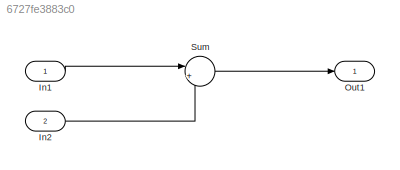
MODEL slx_6727fe3883c0
KIND model
CONFIG AbsTol = auto
CONFIG EnableMultiTasking = on
CONFIG FixedStep = auto
CONFIG MaxStep = auto
CONFIG MinStep = auto
CONFIG RelTol = 1e-3
CONFIG SampleTimeConstraint = Unconstrained
CONFIG SolverName = FixedStepDiscrete
CONFIG StartTime = 0.0
CONFIG StopTime = 10.0
WORKSPACE source: MATLAB code (in-file)
WORKSPACE cmdLim = Simulink.Parameter
WORKSPACE code: cmdLim.Value = 15;
WORKSPACE code: cmdLim.Description = 'Limit for controlling the maximum surface command angle.';
WORKSPACE code: cmdLim.Min = 0;
WORKSPACE code: cmdLim.Max = 90;
WORKSPACE code: cmdLim.DocUnits = 'deg';
WORKSPACE dispGain = Simulink.Parameter
WORKSPACE code: dispGain.Value = 0.75;
WORKSPACE code: dispGain.Description = 'Gain applied to the displacement error.';
WORKSPACE code: dispGain.Min = 0;
WORKSPACE code: dispGain.Max = [];
WORKSPACE code: dispGain.DocUnits = 'deg/sec/deg';
WORKSPACE dispLim = Simulink.Parameter
WORKSPACE code: dispLim.Value = 30;
WORKSPACE code: dispLim.Description = 'Limit for controlling the maximum commanded angle.';
WORKSPACE code: dispLim.Min = 0;
WORKSPACE code: dispLim.Max = 180;
WORKSPACE code: dispLim.DocUnits = 'deg';
WORKSPACE intGain = Simulink.Parameter
WORKSPACE code: intGain.Value = 0.5;
WORKSPACE code: intGain.Description = 'Gain applied to the integral error.';
WORKSPACE code: intGain.Min = 0;
WORKSPACE code: intGain.Max = [];
WORKSPACE code: intGain.DocUnits = 'deg/sec/deg/sec';
WORKSPACE intLim = Simulink.Parameter
WORKSPACE code: intLim.Value = 5;
WORKSPACE code: intLim.Description = 'Limit for controlling the maximum commanded angle.';
WORKSPACE code: intLim.Min = 0;
WORKSPACE code: intLim.Max = 90;
WORKSPACE code: intLim.DocUnits = 'deg';
WORKSPACE rateGain = Simulink.Parameter
WORKSPACE code: rateGain.Value = 2;
WORKSPACE code: rateGain.Description = 'Gain applied to the rate error.';
WORKSPACE code: rateGain.Min = 0;
WORKSPACE code: rateGain.Max = [];
WORKSPACE code: rateGain.DocUnits = 'deg/deg/sec';
WORKSPACE rateLim = Simulink.Parameter
WORKSPACE code: rateLim.Value = 6;
WORKSPACE code: rateLim.Description = 'Limit for controlling the maximum commanded angle.';
WORKSPACE code: rateLim.Min = 0;
WORKSPACE code: rateLim.Max = 180;
WORKSPACE code: rateLim.DocUnits = 'deg/sec';
WORKSPACE hdgGain = Simulink.Parameter
WORKSPACE code: hdgGain.Value = 0.015;
BLOCK [Inport] In1
  OutDataTypeStr = single
BLOCK [Inport] In2
  OutDataTypeStr = single
  Port = 2
BLOCK [Outport] Out1
  VectorParamsAs1DForOutWhenUnconnected = off
BLOCK [Sum] Sum
  InputSameDT = on
  Inputs = |++
  NameLocation = top
  OutDataTypeStr = Inherit: Same as first input
LINE In1:1 -> Sum:1
LINE In2:1 -> Sum:2
LINE Sum:1 -> Out1:1
